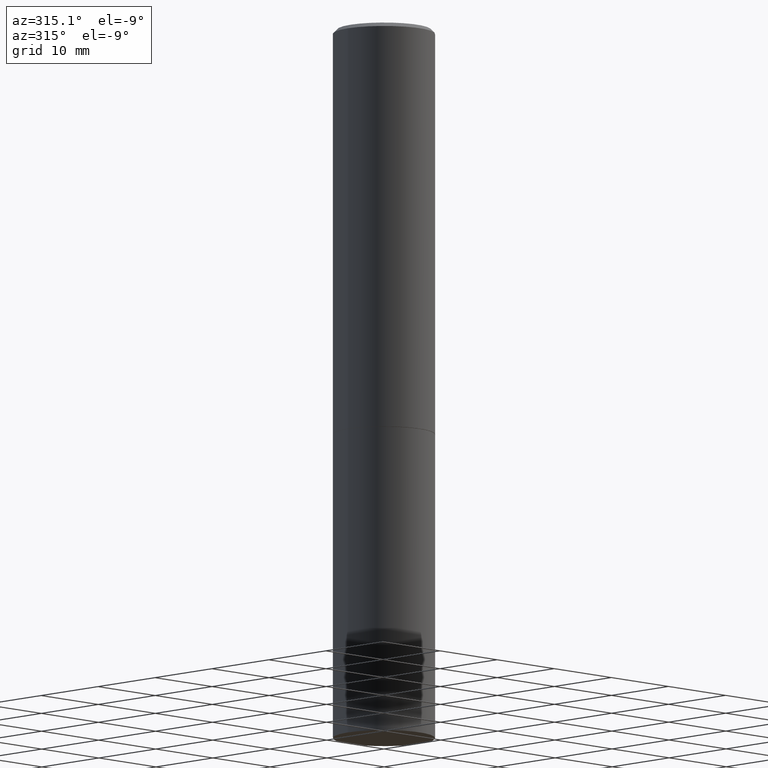
[diagram: clean part render]
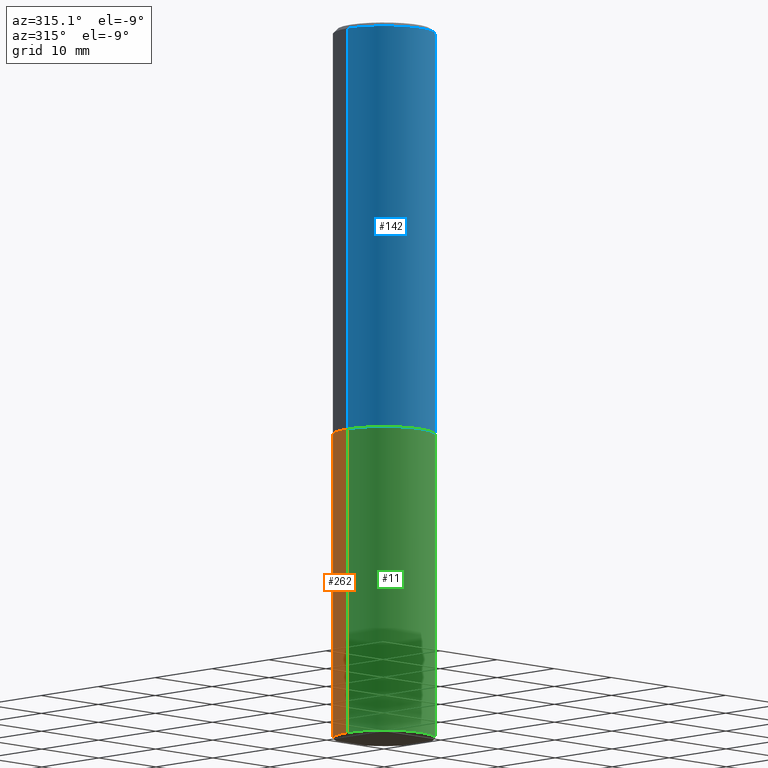
[diagram: same view with three faces highlighted in distinct colors, each labeled with its STEP entity id]
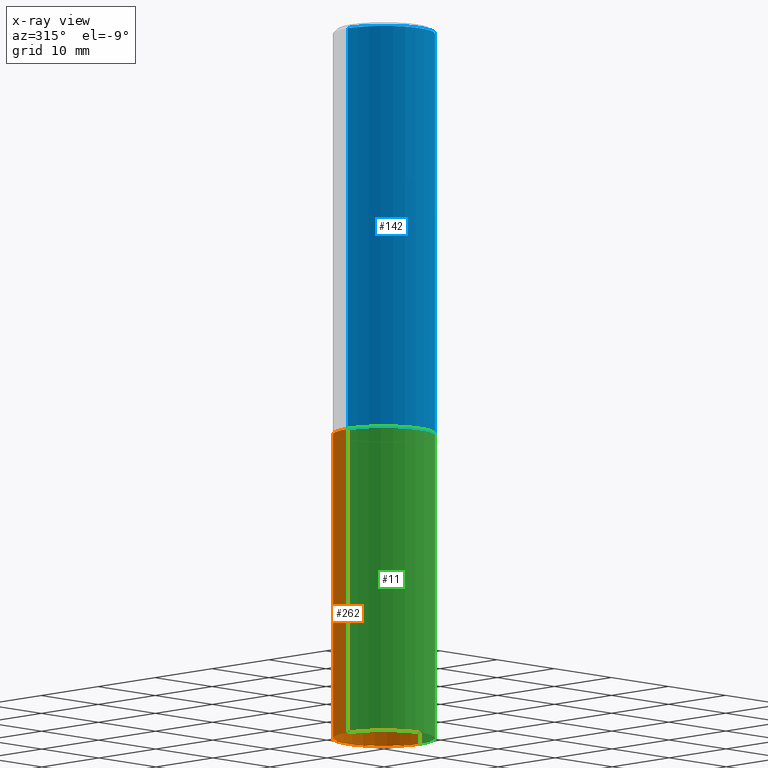
[diagram: x-ray of the same camera — body ghosted, the three highlighted faces saturated]
A machine part, auxiliary view with three faces highlighted in distinct colors.
The next image is the same camera in x-ray (body ghosted, the three faces saturated) — at least one of them is partly hidden behind the body in this view.
Their STEP definitions:

[orange] entity #262 — the highlighted cylindrical surface (partial cylindrical patch) has radius 6.35 mm, axis along (-0, 0, 1).
#16 = ORIENTED_EDGE ( 'NONE', *, *, #56, .T. ) ;
#21 = CARTESIAN_POINT ( 'NONE',  ( 0.2500000000000000000, -8.728703347107857054E-15, -2.000000000000000000 ) ) ;
#24 = EDGE_CURVE ( 'NONE', #288, #134, #44, .T. ) ;
#33 = ORIENTED_EDGE ( 'NONE', *, *, #138, .F. ) ;
#40 = LINE ( 'NONE', #187, #310 ) ;
#42 = LINE ( 'NONE', #283, #264 ) ;
#44 = CIRCLE ( 'NONE', #86, 0.2500000000000000000 ) ;
#56 = EDGE_CURVE ( 'NONE', #134, #93, #42, .T. ) ;
#62 = ORIENTED_EDGE ( 'NONE', *, *, #177, .F. ) ;
#72 = AXIS2_PLACEMENT_3D ( 'NONE', #125, #358, #103 ) ;
#79 = AXIS2_PLACEMENT_3D ( 'NONE', #157, #271, #121 ) ;
#84 = DIRECTION ( 'NONE',  ( -2.445468806185136597E-29, 3.491481338843145583E-15, 1.000000000000000000 ) ) ;
#86 = AXIS2_PLACEMENT_3D ( 'NONE', #180, #84, #203 ) ;
#93 = VERTEX_POINT ( 'NONE', #356 ) ;
#103 = DIRECTION ( 'NONE',  ( 1.000000000000000000, -6.982962677686266711E-15, 4.876176775795935793E-29 ) ) ;
#121 = DIRECTION ( 'NONE',  ( 1.000000000000000000, -6.982962677686266711E-15, 0.000000000000000000 ) ) ;
#125 = CARTESIAN_POINT ( 'NONE',  ( 0.000000000000000000, 0.000000000000000000, 0.000000000000000000 ) ) ;
#129 = CYLINDRICAL_SURFACE ( 'NONE', #72, 0.2500000000000000000 ) ;
#134 = VERTEX_POINT ( 'NONE', #268 ) ;
#138 = EDGE_CURVE ( 'NONE', #288, #291, #40, .T. ) ;
#157 = CARTESIAN_POINT ( 'NONE',  ( 4.890937612370273194E-29, -6.982962677686291165E-15, -2.000000000000000000 ) ) ;
#177 = EDGE_CURVE ( 'NONE', #291, #93, #359, .T. ) ;
#180 = CARTESIAN_POINT ( 'NONE',  ( 8.559140821647976968E-29, -1.222018468595100934E-14, -3.500000000000000000 ) ) ;
#187 = CARTESIAN_POINT ( 'NONE',  ( 0.2500000000000000000, -1.745740669421566678E-15, 1.219044193948983948E-29 ) ) ;
#203 = DIRECTION ( 'NONE',  ( 1.000000000000000000, -6.982962677686270655E-15, 0.000000000000000000 ) ) ;
#207 = EDGE_LOOP ( 'NONE', ( #242, #16, #62, #33 ) ) ;
#230 = CARTESIAN_POINT ( 'NONE',  ( 0.2500000000000000000, -1.396592535537257602E-14, -3.500000000000000000 ) ) ;
#242 = ORIENTED_EDGE ( 'NONE', *, *, #24, .T. ) ;
#243 = DIRECTION ( 'NONE',  ( -2.445468806185136877E-29, 3.491481338843145188E-15, 1.000000000000000000 ) ) ;
#262 = ADVANCED_FACE ( 'NONE', ( #277 ), #129, .T. ) ;
#264 = VECTOR ( 'NONE', #272, 39.37007874015748143 ) ;
#268 = CARTESIAN_POINT ( 'NONE',  ( -0.2500000000000000000, -7.825216842418399394E-15, -3.500000000000000000 ) ) ;
#271 = DIRECTION ( 'NONE',  ( -2.445468806185136597E-29, 3.491481338843145583E-15, 1.000000000000000000 ) ) ;
#272 = DIRECTION ( 'NONE',  ( -2.445468806185136877E-29, 3.491481338843145188E-15, 1.000000000000000000 ) ) ;
#277 = FACE_OUTER_BOUND ( 'NONE', #207, .T. ) ;
#283 = CARTESIAN_POINT ( 'NONE',  ( -0.2500000000000000000, 1.776356839400250465E-15, -1.229733772563726445E-29 ) ) ;
#288 = VERTEX_POINT ( 'NONE', #230 ) ;
#291 = VERTEX_POINT ( 'NONE', #21 ) ;
#310 = VECTOR ( 'NONE', #243, 39.37007874015748143 ) ;
#356 = CARTESIAN_POINT ( 'NONE',  ( -0.2500000000000000000, -7.825216842418399394E-15, -2.000000000000000000 ) ) ;
#358 = DIRECTION ( 'NONE',  ( -2.445468806185136597E-29, 3.491481338843145583E-15, 1.000000000000000000 ) ) ;
#359 = CIRCLE ( 'NONE', #79, 0.2500000000000000000 ) ;

[blue] entity #142 — the highlighted cylindrical surface (partial cylindrical patch) has radius 6.35 mm, axis along (-0, 0, 1).
#12 = DIRECTION ( 'NONE',  ( 1.000000000000000000, -6.982962677686265133E-15, 0.000000000000000000 ) ) ;
#18 = DIRECTION ( 'NONE',  ( 1.000000000000000000, -6.982962677686266711E-15, 0.000000000000000000 ) ) ;
#22 = ORIENTED_EDGE ( 'NONE', *, *, #74, .F. ) ;
#31 = EDGE_CURVE ( 'NONE', #59, #258, #118, .T. ) ;
#43 = CARTESIAN_POINT ( 'NONE',  ( 0.000000000000000000, 0.000000000000000000, 0.000000000000000000 ) ) ;
#59 = VERTEX_POINT ( 'NONE', #97 ) ;
#64 = AXIS2_PLACEMENT_3D ( 'NONE', #349, #321, #18 ) ;
#74 = EDGE_CURVE ( 'NONE', #171, #195, #317, .T. ) ;
#89 = CARTESIAN_POINT ( 'NONE',  ( 0.2499999999999999167, -1.745740669421566283E-15, 1.219044193948983668E-29 ) ) ;
#92 = CIRCLE ( 'NONE', #155, 0.2500000000000000555 ) ;
#97 = CARTESIAN_POINT ( 'NONE',  ( 0.2500000000000000555, -8.725211865769014047E-15, -1.998999999999999888 ) ) ;
#101 = FACE_OUTER_BOUND ( 'NONE', #201, .T. ) ;
#105 = EDGE_CURVE ( 'NONE', #171, #59, #92, .T. ) ;
#107 = ORIENTED_EDGE ( 'NONE', *, *, #225, .F. ) ;
#118 = LINE ( 'NONE', #89, #259 ) ;
#135 = ORIENTED_EDGE ( 'NONE', *, *, #31, .T. ) ;
#142 = ADVANCED_FACE ( 'NONE', ( #101 ), #184, .T. ) ;
#144 = ORIENTED_EDGE ( 'NONE', *, *, #105, .T. ) ;
#150 = DIRECTION ( 'NONE',  ( -2.445468806185136597E-29, 3.491481338843145583E-15, 1.000000000000000000 ) ) ;
#155 = AXIS2_PLACEMENT_3D ( 'NONE', #248, #273, #12 ) ;
#158 = CARTESIAN_POINT ( 'NONE',  ( 0.2499999999999998057, -1.784954126219744611E-15, -0.02000000000000006287 ) ) ;
#171 = VERTEX_POINT ( 'NONE', #276 ) ;
#184 = CYLINDRICAL_SURFACE ( 'NONE', #226, 0.2499999999999999167 ) ;
#195 = VERTEX_POINT ( 'NONE', #213 ) ;
#201 = EDGE_LOOP ( 'NONE', ( #22, #144, #135, #107 ) ) ;
#208 = DIRECTION ( 'NONE',  ( -2.445468806185136877E-29, 3.491481338843145188E-15, 1.000000000000000000 ) ) ;
#213 = CARTESIAN_POINT ( 'NONE',  ( -0.2499999999999998057, 1.675911042644702196E-15, -0.02000000000000006287 ) ) ;
#221 = CARTESIAN_POINT ( 'NONE',  ( -0.2499999999999999167, 1.776356839400249873E-15, -1.229733772563726165E-29 ) ) ;
#225 = EDGE_CURVE ( 'NONE', #195, #258, #335, .T. ) ;
#226 = AXIS2_PLACEMENT_3D ( 'NONE', #43, #150, #327 ) ;
#248 = CARTESIAN_POINT ( 'NONE',  ( 4.888492143564087591E-29, -6.979471196347447369E-15, -1.998999999999999888 ) ) ;
#258 = VERTEX_POINT ( 'NONE', #158 ) ;
#259 = VECTOR ( 'NONE', #208, 39.37007874015748143 ) ;
#273 = DIRECTION ( 'NONE',  ( -2.445468806185136597E-29, 3.491481338843145583E-15, 1.000000000000000000 ) ) ;
#276 = CARTESIAN_POINT ( 'NONE',  ( -0.2500000000000000555, -1.748293572161903489E-15, -1.998999999999999888 ) ) ;
#304 = DIRECTION ( 'NONE',  ( -2.445468806185136877E-29, 3.491481338843145188E-15, 1.000000000000000000 ) ) ;
#317 = LINE ( 'NONE', #221, #334 ) ;
#321 = DIRECTION ( 'NONE',  ( -2.445468806185136597E-29, 3.491481338843145583E-15, 1.000000000000000000 ) ) ;
#327 = DIRECTION ( 'NONE',  ( 1.000000000000000000, -6.982962677686267499E-15, 4.876176775795936353E-29 ) ) ;
#334 = VECTOR ( 'NONE', #304, 39.37007874015748143 ) ;
#335 = CIRCLE ( 'NONE', #64, 0.2499999999999998057 ) ;
#349 = CARTESIAN_POINT ( 'NONE',  ( 4.890937612370288923E-31, -6.982962677686312563E-17, -0.02000000000000006287 ) ) ;

[green] entity #11 — the highlighted cylindrical surface (partial cylindrical patch) has radius 6.35 mm, axis along (-0, 0, 1).
#1 = ORIENTED_EDGE ( 'NONE', *, *, #38, .F. ) ;
#5 = AXIS2_PLACEMENT_3D ( 'NONE', #8, #68, #36 ) ;
#8 = CARTESIAN_POINT ( 'NONE',  ( 0.000000000000000000, 0.000000000000000000, 0.000000000000000000 ) ) ;
#11 = ADVANCED_FACE ( 'NONE', ( #120 ), #57, .T. ) ;
#14 = AXIS2_PLACEMENT_3D ( 'NONE', #324, #75, #298 ) ;
#21 = CARTESIAN_POINT ( 'NONE',  ( 0.2500000000000000000, -8.728703347107857054E-15, -2.000000000000000000 ) ) ;
#36 = DIRECTION ( 'NONE',  ( 1.000000000000000000, -6.982962677686266711E-15, 4.876176775795935793E-29 ) ) ;
#38 = EDGE_CURVE ( 'NONE', #93, #291, #175, .T. ) ;
#40 = LINE ( 'NONE', #187, #310 ) ;
#42 = LINE ( 'NONE', #283, #264 ) ;
#56 = EDGE_CURVE ( 'NONE', #134, #93, #42, .T. ) ;
#57 = CYLINDRICAL_SURFACE ( 'NONE', #5, 0.2500000000000000000 ) ;
#68 = DIRECTION ( 'NONE',  ( -2.445468806185136597E-29, 3.491481338843145583E-15, 1.000000000000000000 ) ) ;
#75 = DIRECTION ( 'NONE',  ( -2.445468806185136597E-29, 3.491481338843145583E-15, 1.000000000000000000 ) ) ;
#90 = DIRECTION ( 'NONE',  ( -2.445468806185136597E-29, 3.491481338843145583E-15, 1.000000000000000000 ) ) ;
#93 = VERTEX_POINT ( 'NONE', #356 ) ;
#120 = FACE_OUTER_BOUND ( 'NONE', #149, .T. ) ;
#130 = AXIS2_PLACEMENT_3D ( 'NONE', #212, #90, #152 ) ;
#134 = VERTEX_POINT ( 'NONE', #268 ) ;
#138 = EDGE_CURVE ( 'NONE', #288, #291, #40, .T. ) ;
#149 = EDGE_LOOP ( 'NONE', ( #343, #222, #267, #1 ) ) ;
#152 = DIRECTION ( 'NONE',  ( 1.000000000000000000, -6.982962677686266711E-15, 0.000000000000000000 ) ) ;
#153 = EDGE_CURVE ( 'NONE', #134, #288, #199, .T. ) ;
#175 = CIRCLE ( 'NONE', #130, 0.2500000000000000000 ) ;
#187 = CARTESIAN_POINT ( 'NONE',  ( 0.2500000000000000000, -1.745740669421566678E-15, 1.219044193948983948E-29 ) ) ;
#199 = CIRCLE ( 'NONE', #14, 0.2500000000000000000 ) ;
#212 = CARTESIAN_POINT ( 'NONE',  ( 4.890937612370273194E-29, -6.982962677686291165E-15, -2.000000000000000000 ) ) ;
#222 = ORIENTED_EDGE ( 'NONE', *, *, #153, .T. ) ;
#230 = CARTESIAN_POINT ( 'NONE',  ( 0.2500000000000000000, -1.396592535537257602E-14, -3.500000000000000000 ) ) ;
#243 = DIRECTION ( 'NONE',  ( -2.445468806185136877E-29, 3.491481338843145188E-15, 1.000000000000000000 ) ) ;
#264 = VECTOR ( 'NONE', #272, 39.37007874015748143 ) ;
#267 = ORIENTED_EDGE ( 'NONE', *, *, #138, .T. ) ;
#268 = CARTESIAN_POINT ( 'NONE',  ( -0.2500000000000000000, -7.825216842418399394E-15, -3.500000000000000000 ) ) ;
#272 = DIRECTION ( 'NONE',  ( -2.445468806185136877E-29, 3.491481338843145188E-15, 1.000000000000000000 ) ) ;
#283 = CARTESIAN_POINT ( 'NONE',  ( -0.2500000000000000000, 1.776356839400250465E-15, -1.229733772563726445E-29 ) ) ;
#288 = VERTEX_POINT ( 'NONE', #230 ) ;
#291 = VERTEX_POINT ( 'NONE', #21 ) ;
#298 = DIRECTION ( 'NONE',  ( 1.000000000000000000, -6.982962677686270655E-15, 0.000000000000000000 ) ) ;
#310 = VECTOR ( 'NONE', #243, 39.37007874015748143 ) ;
#324 = CARTESIAN_POINT ( 'NONE',  ( 8.559140821647976968E-29, -1.222018468595100934E-14, -3.500000000000000000 ) ) ;
#343 = ORIENTED_EDGE ( 'NONE', *, *, #56, .F. ) ;
#356 = CARTESIAN_POINT ( 'NONE',  ( -0.2500000000000000000, -7.825216842418399394E-15, -2.000000000000000000 ) ) ;